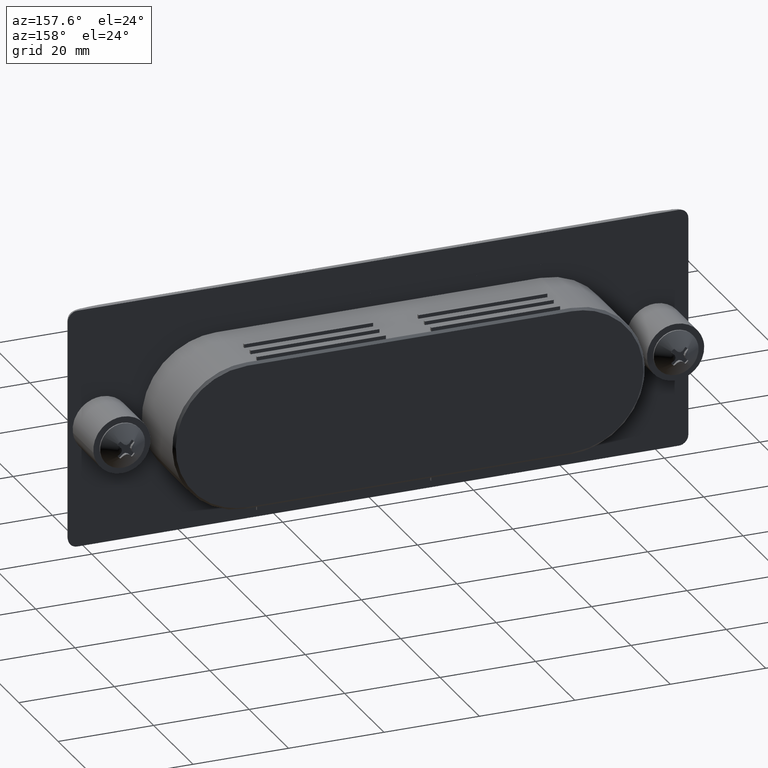
[diagram: clean part render]
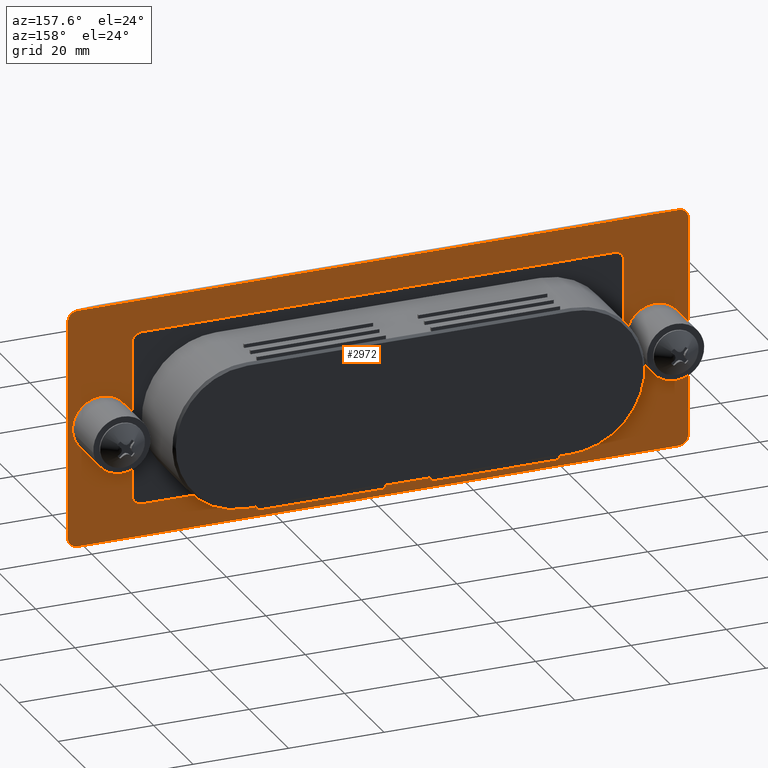
[diagram: same view with one face highlighted and labeled with its STEP entity id]
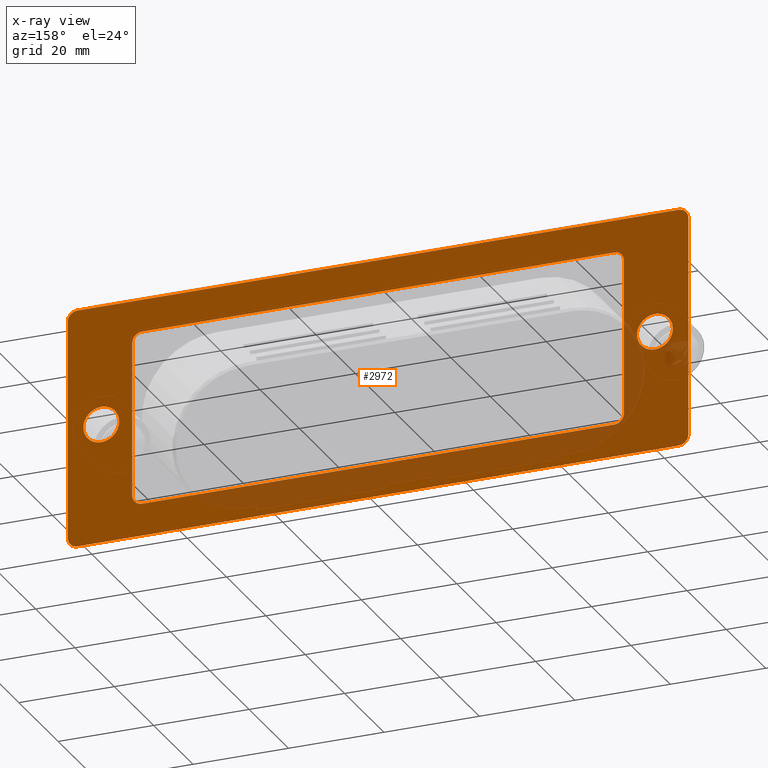
[diagram: x-ray of the same camera — body ghosted, the highlighted face saturated]
A machine part, auxiliary view. The second image highlights one B-rep face of the part: STEP entity #2972.
The next image is the same camera in x-ray: the body ghosted, the highlighted face saturated — about 20% of this face is hidden behind the body in this view.
In plain terms, the highlighted face is a freeform B-spline surface patch.
Its self-contained STEP definition (entity closure, byte-faithful):
#2329=CARTESIAN_POINT('',(-58.0,0.0,3.750000000000000));
#2330=VERTEX_POINT('',#2329);
#2331=CARTESIAN_POINT('',(-54.279001698218302,4.495952E-016,0.465480008311435));
#2332=VERTEX_POINT('',#2331);
#2333=CARTESIAN_POINT('',(-58.0,0.0,3.750000000000000));
#2334=CARTESIAN_POINT('',(-54.689880250354825,0.0,3.750000000000000));
#2335=CARTESIAN_POINT('',(-54.279001698218302,4.495952E-016,0.465480008311435));
#2343=(BOUNDED_CURVE()B_SPLINE_CURVE(2,(#2333,#2334,#2335),.UNSPECIFIED.,.F.,.U.)B_SPLINE_CURVE_WITH_KNOTS((3,3),(0.0,0.228526070982881),.UNSPECIFIED.)CURVE()GEOMETRIC_REPRESENTATION_ITEM()RATIONAL_B_SPLINE_CURVE((1.0,0.732265053948129,0.954005430184640))REPRESENTATION_ITEM(''));
#2344=EDGE_CURVE('',#2330,#2332,#2343,.T.);
#2385=CARTESIAN_POINT('',(-61.749857211484610,4.440892E-016,-0.032724508809673));
#2386=VERTEX_POINT('',#2385);
#2392=CARTESIAN_POINT('',(-61.749857211484610,4.440892E-016,-0.032724508809673));
#2393=CARTESIAN_POINT('',(-61.750000000000007,0.0,-0.016362566268441));
#2394=CARTESIAN_POINT('',(-61.750000000000000,0.0,0.0));
#2395=CARTESIAN_POINT('',(-61.750000000000000,0.0,3.750000000000000));
#2396=CARTESIAN_POINT('',(-58.0,0.0,3.750000000000000));
#2404=(BOUNDED_CURVE()B_SPLINE_CURVE(2,(#2392,#2393,#2394,#2395,#2396),.UNSPECIFIED.,.F.,.U.)B_SPLINE_CURVE_WITH_KNOTS((3,2,3),(0.748460105600117,0.750000000000000,1.0),.UNSPECIFIED.)CURVE()GEOMETRIC_REPRESENTATION_ITEM()RATIONAL_B_SPLINE_CURVE((0.996414027950220,0.998195901490342,1.0,0.707106781186547,1.0))REPRESENTATION_ITEM(''));
#2405=EDGE_CURVE('',#2386,#2330,#2404,.T.);
#2432=CARTESIAN_POINT('',(-58.0,0.0,-3.750000000000000));
#2433=VERTEX_POINT('',#2432);
#2434=CARTESIAN_POINT('',(-54.279001698218295,4.495952E-016,0.465480008311435));
#2435=CARTESIAN_POINT('',(-54.250000000000014,0.0,0.233643478768673));
#2436=CARTESIAN_POINT('',(-54.250000000000007,0.0,0.0));
#2437=CARTESIAN_POINT('',(-54.250000000000014,0.0,-3.750000000000000));
#2438=CARTESIAN_POINT('',(-58.0,0.0,-3.750000000000000));
#2446=(BOUNDED_CURVE()B_SPLINE_CURVE(2,(#2434,#2435,#2436,#2437,#2438),.UNSPECIFIED.,.F.,.U.)B_SPLINE_CURVE_WITH_KNOTS((3,2,3),(0.228526070982882,0.250000000000000,0.500000000000000),.UNSPECIFIED.)CURVE()GEOMETRIC_REPRESENTATION_ITEM()RATIONAL_B_SPLINE_CURVE((0.954005430184641,0.974841727238418,1.0,0.707106781186547,1.0))REPRESENTATION_ITEM(''));
#2447=EDGE_CURVE('',#2332,#2433,#2446,.T.);
#2449=CARTESIAN_POINT('',(-58.0,0.0,-3.750000000000000));
#2450=CARTESIAN_POINT('',(-61.717417038361518,0.0,-3.750000000000000));
#2451=CARTESIAN_POINT('',(-61.749857211484610,4.440892E-016,-0.032724508809673));
#2459=(BOUNDED_CURVE()B_SPLINE_CURVE(2,(#2449,#2450,#2451),.UNSPECIFIED.,.F.,.U.)B_SPLINE_CURVE_WITH_KNOTS((3,3),(0.500000000000000,0.748460105600117),.UNSPECIFIED.)CURVE()GEOMETRIC_REPRESENTATION_ITEM()RATIONAL_B_SPLINE_CURVE((1.0,0.708910879696206,0.996414027950218))REPRESENTATION_ITEM(''));
#2460=EDGE_CURVE('',#2433,#2386,#2459,.T.);
#2515=CARTESIAN_POINT('',(58.0,0.0,3.749999999999996));
#2516=VERTEX_POINT('',#2515);
#2517=CARTESIAN_POINT('',(61.720998301781712,4.640983E-016,0.465480008311430));
#2518=VERTEX_POINT('',#2517);
#2519=CARTESIAN_POINT('',(58.0,0.0,3.749999999999996));
#2520=CARTESIAN_POINT('',(61.310119749645203,0.0,3.749999999999996));
#2521=CARTESIAN_POINT('',(61.720998301781712,4.640983E-016,0.465480008311430));
#2529=(BOUNDED_CURVE()B_SPLINE_CURVE(2,(#2519,#2520,#2521),.UNSPECIFIED.,.F.,.U.)B_SPLINE_CURVE_WITH_KNOTS((3,3),(0.0,0.228526070982881),.UNSPECIFIED.)CURVE()GEOMETRIC_REPRESENTATION_ITEM()RATIONAL_B_SPLINE_CURVE((1.0,0.732265053948129,0.954005430184640))REPRESENTATION_ITEM(''));
#2530=EDGE_CURVE('',#2516,#2518,#2529,.T.);
#2571=CARTESIAN_POINT('',(54.250142788515390,4.718448E-016,-0.032724508809678));
#2572=VERTEX_POINT('',#2571);
#2578=CARTESIAN_POINT('',(54.250142788515390,4.718448E-016,-0.032724508809678));
#2579=CARTESIAN_POINT('',(54.250000000000014,0.0,-0.016362566268446));
#2580=CARTESIAN_POINT('',(54.250000000000007,0.0,-4.440892E-015));
#2581=CARTESIAN_POINT('',(54.250000000000014,0.0,3.749999999999996));
#2582=CARTESIAN_POINT('',(58.0,0.0,3.749999999999996));
#2590=(BOUNDED_CURVE()B_SPLINE_CURVE(2,(#2578,#2579,#2580,#2581,#2582),.UNSPECIFIED.,.F.,.U.)B_SPLINE_CURVE_WITH_KNOTS((3,2,3),(0.748460105600117,0.750000000000000,1.0),.UNSPECIFIED.)CURVE()GEOMETRIC_REPRESENTATION_ITEM()RATIONAL_B_SPLINE_CURVE((0.996414027950220,0.998195901490342,1.0,0.707106781186547,1.0))REPRESENTATION_ITEM(''));
#2591=EDGE_CURVE('',#2572,#2516,#2590,.T.);
#2618=CARTESIAN_POINT('',(58.0,0.0,-3.750000000000004));
#2619=VERTEX_POINT('',#2618);
#2620=CARTESIAN_POINT('',(61.720998301781705,4.640983E-016,0.465480008311430));
#2621=CARTESIAN_POINT('',(61.750000000000007,0.0,0.233643478768669));
#2622=CARTESIAN_POINT('',(61.750000000000000,0.0,-4.440892E-015));
#2623=CARTESIAN_POINT('',(61.750000000000000,0.0,-3.750000000000004));
#2624=CARTESIAN_POINT('',(58.0,0.0,-3.750000000000004));
#2632=(BOUNDED_CURVE()B_SPLINE_CURVE(2,(#2620,#2621,#2622,#2623,#2624),.UNSPECIFIED.,.F.,.U.)B_SPLINE_CURVE_WITH_KNOTS((3,2,3),(0.228526070982882,0.250000000000000,0.500000000000000),.UNSPECIFIED.)CURVE()GEOMETRIC_REPRESENTATION_ITEM()RATIONAL_B_SPLINE_CURVE((0.954005430184641,0.974841727238418,1.0,0.707106781186547,1.0))REPRESENTATION_ITEM(''));
#2633=EDGE_CURVE('',#2518,#2619,#2632,.T.);
#2635=CARTESIAN_POINT('',(58.0,0.0,-3.750000000000004));
#2636=CARTESIAN_POINT('',(54.282582961638496,0.0,-3.750000000000004));
#2637=CARTESIAN_POINT('',(54.250142788515390,4.718448E-016,-0.032724508809678));
#2645=(BOUNDED_CURVE()B_SPLINE_CURVE(2,(#2635,#2636,#2637),.UNSPECIFIED.,.F.,.U.)B_SPLINE_CURVE_WITH_KNOTS((3,3),(0.500000000000000,0.748460105600117),.UNSPECIFIED.)CURVE()GEOMETRIC_REPRESENTATION_ITEM()RATIONAL_B_SPLINE_CURVE((1.0,0.708910879696206,0.996414027950218))REPRESENTATION_ITEM(''));
#2646=EDGE_CURVE('',#2619,#2572,#2645,.T.);
#2707=CARTESIAN_POINT('',(-71.493030090765245,0.0,-27.497499903090301));
#2708=CARTESIAN_POINT('',(-71.493030090765245,0.0,27.497501244194812));
#2709=CARTESIAN_POINT('',(71.493032415330987,0.0,-27.497499903090301));
#2710=CARTESIAN_POINT('',(71.493032415330987,0.0,27.497501244194812));
#2711=B_SPLINE_SURFACE_WITH_KNOTS('',1,1,((#2707,#2709),(#2708,#2710)),.UNSPECIFIED.,.F.,.F.,.U.,(2,2),(2,2),(0.0,54.995001147285109),(0.0,142.986062506096200),.UNSPECIFIED.);
#2712=CARTESIAN_POINT('',(-63.0,0.0,25.0));
#2713=VERTEX_POINT('',#2712);
#2714=CARTESIAN_POINT('',(-64.533334075681097,0.0,24.284089799178901));
#2715=VERTEX_POINT('',#2714);
#2716=CARTESIAN_POINT('',(-63.0,0.0,25.0));
#2717=CARTESIAN_POINT('',(-63.933795462026914,0.0,25.000000000000007));
#2718=CARTESIAN_POINT('',(-64.533334075681068,0.0,24.284089799178879));
#2726=(BOUNDED_CURVE()B_SPLINE_CURVE(2,(#2716,#2717,#2718),.UNSPECIFIED.,.F.,.U.)CURVE()GEOMETRIC_REPRESENTATION_ITEM()QUASI_UNIFORM_CURVE()RATIONAL_B_SPLINE_CURVE((1.0,0.906102891395189,1.0))REPRESENTATION_ITEM(''));
#2727=EDGE_CURVE('',#2713,#2715,#2726,.T.);
#2728=ORIENTED_EDGE('',*,*,#2727,.F.);
#2729=CARTESIAN_POINT('',(63.0,0.0,25.0));
#2730=VERTEX_POINT('',#2729);
#2731=CARTESIAN_POINT('',(63.0,0.0,25.0));
#2732=CARTESIAN_POINT('',(-63.0,0.0,25.0));
#2733=QUASI_UNIFORM_CURVE('',1,(#2731,#2732),.UNSPECIFIED.,.F.,.U.);
#2734=EDGE_CURVE('',#2730,#2713,#2733,.T.);
#2735=ORIENTED_EDGE('',*,*,#2734,.F.);
#2736=CARTESIAN_POINT('',(64.533334075681296,0.0,24.284089799178400));
#2737=VERTEX_POINT('',#2736);
#2738=CARTESIAN_POINT('',(64.533334075681296,0.0,24.284089799178400));
#2739=CARTESIAN_POINT('',(63.933795462027241,0.0,25.000000000000004));
#2740=CARTESIAN_POINT('',(63.0,0.0,25.0));
#2748=(BOUNDED_CURVE()B_SPLINE_CURVE(2,(#2738,#2739,#2740),.UNSPECIFIED.,.F.,.U.)CURVE()GEOMETRIC_REPRESENTATION_ITEM()QUASI_UNIFORM_CURVE()RATIONAL_B_SPLINE_CURVE((1.0,0.906102891395135,1.0))REPRESENTATION_ITEM(''));
#2749=EDGE_CURVE('',#2737,#2730,#2748,.T.);
#2750=ORIENTED_EDGE('',*,*,#2749,.F.);
#2751=CARTESIAN_POINT('',(64.999571890526198,0.0,23.0));
#2752=VERTEX_POINT('',#2751);
#2753=CARTESIAN_POINT('',(64.999571890526198,0.0,23.0));
#2754=CARTESIAN_POINT('',(64.999571890526212,0.0,23.117391981724339));
#2755=CARTESIAN_POINT('',(64.989335340886157,0.0,23.232837629792531));
#2756=CARTESIAN_POINT('',(64.949438624841164,0.0,23.460035802722071));
#2757=CARTESIAN_POINT('',(64.919776405718139,0.0,23.571787937288398));
#2758=CARTESIAN_POINT('',(64.860132140196683,0.0,23.736535404972130));
#2759=CARTESIAN_POINT('',(64.837683124573019,0.0,23.790943084943621));
#2760=CARTESIAN_POINT('',(64.788586925700486,0.0,23.896573001220990));
#2761=CARTESIAN_POINT('',(64.761844048174069,0.0,23.948082947217980));
#2762=CARTESIAN_POINT('',(64.675124559576759,0.0,24.098753330828849));
#2763=CARTESIAN_POINT('',(64.608708597608853,0.0,24.194084938939191));
#2764=CARTESIAN_POINT('',(64.533334075681296,0.0,24.284089799178400));
#2765=B_SPLINE_CURVE_WITH_KNOTS('',3,(#2753,#2754,#2755,#2756,#2757,#2758,#2759,#2760,#2761,#2762,#2763,#2764),.UNSPECIFIED.,.F.,.U.,(4,2,2,2,2,4),(0.0,0.250000000000005,0.500000000000011,0.625000000000013,0.750000000000016,1.0),.UNSPECIFIED.);
#2766=EDGE_CURVE('',#2752,#2737,#2765,.T.);
#2767=ORIENTED_EDGE('',*,*,#2766,.F.);
#2768=CARTESIAN_POINT('',(64.999571890526198,0.0,-23.0));
#2769=VERTEX_POINT('',#2768);
#2770=CARTESIAN_POINT('',(64.999571890526198,0.0,-23.0));
#2771=CARTESIAN_POINT('',(64.999571890526198,0.0,23.0));
#2772=QUASI_UNIFORM_CURVE('',1,(#2770,#2771),.UNSPECIFIED.,.F.,.U.);
#2773=EDGE_CURVE('',#2769,#2752,#2772,.T.);
#2774=ORIENTED_EDGE('',*,*,#2773,.F.);
#2775=CARTESIAN_POINT('',(64.533334075681296,1.355253E-017,-24.284089799178400));
#2776=VERTEX_POINT('',#2775);
#2777=CARTESIAN_POINT('',(64.533334075681296,1.355253E-017,-24.284089799178400));
#2778=CARTESIAN_POINT('',(64.608709866245761,1.355253E-017,-24.194083424057400));
#2779=CARTESIAN_POINT('',(64.674938814090893,-7.523164E-034,-24.098977066176928));
#2780=CARTESIAN_POINT('',(64.790085953868370,0.0,-23.899112434512631));
#2781=CARTESIAN_POINT('',(64.839001651547278,0.0,-23.794352770013990));
#2782=CARTESIAN_POINT('',(64.898904656847577,0.0,-23.629702536492630));
#2783=CARTESIAN_POINT('',(64.916577187236669,0.0,-23.573560433712171));
#2784=CARTESIAN_POINT('',(64.946664921715396,0.0,-23.461027059860019));
#2785=CARTESIAN_POINT('',(64.959191227488887,0.0,-23.404353735862411));
#2786=CARTESIAN_POINT('',(64.989333669579253,0.0,-23.233132622784829));
#2787=CARTESIAN_POINT('',(64.999571890526198,0.0,-23.117393151221350));
#2788=CARTESIAN_POINT('',(64.999571890526198,0.0,-23.0));
#2789=B_SPLINE_CURVE_WITH_KNOTS('',3,(#2777,#2778,#2779,#2780,#2781,#2782,#2783,#2784,#2785,#2786,#2787,#2788),.UNSPECIFIED.,.F.,.U.,(4,2,2,2,2,4),(0.0,0.250000000000000,0.500000000000000,0.625000000000000,0.750000000000000,1.0),.UNSPECIFIED.);
#2790=EDGE_CURVE('',#2776,#2769,#2789,.T.);
#2791=ORIENTED_EDGE('',*,*,#2790,.F.);
#2792=CARTESIAN_POINT('',(63.0,0.0,-25.0));
#2793=VERTEX_POINT('',#2792);
#2794=CARTESIAN_POINT('',(63.0,0.0,-25.0));
#2795=CARTESIAN_POINT('',(63.933795462027234,0.0,-25.0));
#2796=CARTESIAN_POINT('',(64.533334075681296,1.355253E-017,-24.284089799178400));
#2804=(BOUNDED_CURVE()B_SPLINE_CURVE(2,(#2794,#2795,#2796),.UNSPECIFIED.,.F.,.U.)CURVE()GEOMETRIC_REPRESENTATION_ITEM()QUASI_UNIFORM_CURVE()RATIONAL_B_SPLINE_CURVE((1.0,0.906102891395135,1.0))REPRESENTATION_ITEM(''));
#2805=EDGE_CURVE('',#2793,#2776,#2804,.T.);
#2806=ORIENTED_EDGE('',*,*,#2805,.F.);
#2807=CARTESIAN_POINT('',(-63.0,0.0,-25.0));
#2808=VERTEX_POINT('',#2807);
#2809=CARTESIAN_POINT('',(-63.0,0.0,-25.0));
#2810=CARTESIAN_POINT('',(63.0,0.0,-25.0));
#2811=QUASI_UNIFORM_CURVE('',1,(#2809,#2810),.UNSPECIFIED.,.F.,.U.);
#2812=EDGE_CURVE('',#2808,#2793,#2811,.T.);
#2813=ORIENTED_EDGE('',*,*,#2812,.F.);
#2814=CARTESIAN_POINT('',(-64.533334075681097,0.0,-24.284089799178901));
#2815=VERTEX_POINT('',#2814);
#2816=CARTESIAN_POINT('',(-64.533334075681068,0.0,-24.284089799178879));
#2817=CARTESIAN_POINT('',(-63.933795462026922,0.0,-25.000000000000004));
#2818=CARTESIAN_POINT('',(-63.0,0.0,-25.0));
#2826=(BOUNDED_CURVE()B_SPLINE_CURVE(2,(#2816,#2817,#2818),.UNSPECIFIED.,.F.,.U.)CURVE()GEOMETRIC_REPRESENTATION_ITEM()QUASI_UNIFORM_CURVE()RATIONAL_B_SPLINE_CURVE((1.0,0.906102891395188,1.0))REPRESENTATION_ITEM(''));
#2827=EDGE_CURVE('',#2815,#2808,#2826,.T.);
#2828=ORIENTED_EDGE('',*,*,#2827,.F.);
#2829=CARTESIAN_POINT('',(-64.999571890526298,0.0,-23.0));
#2830=VERTEX_POINT('',#2829);
#2831=CARTESIAN_POINT('',(-64.999571890526298,0.0,-23.0));
#2832=CARTESIAN_POINT('',(-64.999571890526340,0.0,-23.117391981724388));
#2833=CARTESIAN_POINT('',(-64.989335340886171,0.0,-23.232837629792598));
#2834=CARTESIAN_POINT('',(-64.949438624841150,0.0,-23.460035802722238));
#2835=CARTESIAN_POINT('',(-64.919776405718054,0.0,-23.571787937288612));
#2836=CARTESIAN_POINT('',(-64.860132140196598,0.0,-23.736535404972411));
#2837=CARTESIAN_POINT('',(-64.837683124572891,0.0,-23.790943084943880));
#2838=CARTESIAN_POINT('',(-64.788586925700343,0.0,-23.896573001221292));
#2839=CARTESIAN_POINT('',(-64.761844048173870,0.0,-23.948082947218310));
#2840=CARTESIAN_POINT('',(-64.675124559576503,0.0,-24.098753330829201));
#2841=CARTESIAN_POINT('',(-64.608708597608683,0.0,-24.194084938939660));
#2842=CARTESIAN_POINT('',(-64.533334075681097,0.0,-24.284089799178901));
#2843=B_SPLINE_CURVE_WITH_KNOTS('',3,(#2831,#2832,#2833,#2834,#2835,#2836,#2837,#2838,#2839,#2840,#2841,#2842),.UNSPECIFIED.,.F.,.U.,(4,2,2,2,2,4),(0.0,0.249999999999997,0.499999999999993,0.624999999999995,0.749999999999996,1.0),.UNSPECIFIED.);
#2844=EDGE_CURVE('',#2830,#2815,#2843,.T.);
#2845=ORIENTED_EDGE('',*,*,#2844,.F.);
#2846=CARTESIAN_POINT('',(-64.999571890526298,0.0,23.0));
#2847=VERTEX_POINT('',#2846);
#2848=CARTESIAN_POINT('',(-64.999571890526298,0.0,23.0));
#2849=CARTESIAN_POINT('',(-64.999571890526298,0.0,-23.0));
#2850=QUASI_UNIFORM_CURVE('',1,(#2848,#2849),.UNSPECIFIED.,.F.,.U.);
#2851=EDGE_CURVE('',#2847,#2830,#2850,.T.);
#2852=ORIENTED_EDGE('',*,*,#2851,.F.);
#2853=CARTESIAN_POINT('',(-64.533334075681097,0.0,24.284089799178901));
#2854=CARTESIAN_POINT('',(-64.608709866245619,0.0,24.194083424057869));
#2855=CARTESIAN_POINT('',(-64.674938814090652,0.0,24.098977066177309));
#2856=CARTESIAN_POINT('',(-64.790085953868228,0.0,23.899112434512940));
#2857=CARTESIAN_POINT('',(-64.839001651547150,0.0,23.794352770014250));
#2858=CARTESIAN_POINT('',(-64.898904656847520,0.0,23.629702536492822));
#2859=CARTESIAN_POINT('',(-64.916577187236598,0.0,23.573560433712380));
#2860=CARTESIAN_POINT('',(-64.946664921715325,0.0,23.461027059860179));
#2861=CARTESIAN_POINT('',(-64.959191227488859,0.0,23.404353735862550));
#2862=CARTESIAN_POINT('',(-64.989333669579267,0.0,23.233132622784911));
#2863=CARTESIAN_POINT('',(-64.999571890526312,0.0,23.117393151221400));
#2864=CARTESIAN_POINT('',(-64.999571890526298,0.0,23.0));
#2865=B_SPLINE_CURVE_WITH_KNOTS('',3,(#2853,#2854,#2855,#2856,#2857,#2858,#2859,#2860,#2861,#2862,#2863,#2864),.UNSPECIFIED.,.F.,.U.,(4,2,2,2,2,4),(0.0,0.250000000000000,0.499999999999999,0.625000000000003,0.750000000000006,1.0),.UNSPECIFIED.);
#2866=EDGE_CURVE('',#2715,#2847,#2865,.T.);
#2867=ORIENTED_EDGE('',*,*,#2866,.F.);
#2868=EDGE_LOOP('',(#2728,#2735,#2750,#2767,#2774,#2791,#2806,#2813,#2828,#2845,#2852,#2867));
#2869=FACE_OUTER_BOUND('',#2868,.T.);
#2870=CARTESIAN_POINT('',(49.500000000000000,0.0,18.250000000000000));
#2871=VERTEX_POINT('',#2870);
#2872=CARTESIAN_POINT('',(-49.500000000000000,0.0,18.250000000000000));
#2873=VERTEX_POINT('',#2872);
#2874=CARTESIAN_POINT('',(49.500000000000000,0.0,18.250000000000000));
#2875=CARTESIAN_POINT('',(-49.500000000000000,0.0,18.250000000000000));
#2876=QUASI_UNIFORM_CURVE('',1,(#2874,#2875),.UNSPECIFIED.,.F.,.U.);
#2877=EDGE_CURVE('',#2871,#2873,#2876,.T.);
#2878=ORIENTED_EDGE('',*,*,#2877,.T.);
#2879=CARTESIAN_POINT('',(-51.500000000000000,0.0,16.250000000000000));
#2880=VERTEX_POINT('',#2879);
#2881=CARTESIAN_POINT('',(-49.500000000000000,0.0,18.250000000000000));
#2882=CARTESIAN_POINT('',(-51.500000000000000,0.0,18.250000000000011));
#2883=CARTESIAN_POINT('',(-51.500000000000007,0.0,16.250000000000000));
#2891=(BOUNDED_CURVE()B_SPLINE_CURVE(2,(#2881,#2882,#2883),.UNSPECIFIED.,.F.,.U.)CURVE()GEOMETRIC_REPRESENTATION_ITEM()QUASI_UNIFORM_CURVE()RATIONAL_B_SPLINE_CURVE((1.0,0.707106781186548,1.0))REPRESENTATION_ITEM(''));
#2892=EDGE_CURVE('',#2873,#2880,#2891,.T.);
#2893=ORIENTED_EDGE('',*,*,#2892,.T.);
#2894=CARTESIAN_POINT('',(-51.500000000000000,0.0,-16.250000000000000));
#2895=VERTEX_POINT('',#2894);
#2896=CARTESIAN_POINT('',(-51.500000000000000,0.0,16.250000000000000));
#2897=CARTESIAN_POINT('',(-51.500000000000000,0.0,-16.250000000000000));
#2898=QUASI_UNIFORM_CURVE('',1,(#2896,#2897),.UNSPECIFIED.,.F.,.U.);
#2899=EDGE_CURVE('',#2880,#2895,#2898,.T.);
#2900=ORIENTED_EDGE('',*,*,#2899,.T.);
#2901=CARTESIAN_POINT('',(-49.500000000000000,0.0,-18.250000000000000));
#2902=VERTEX_POINT('',#2901);
#2903=CARTESIAN_POINT('',(-51.500000000000007,0.0,-16.250000000000000));
#2904=CARTESIAN_POINT('',(-51.500000000000000,0.0,-18.250000000000011));
#2905=CARTESIAN_POINT('',(-49.500000000000000,0.0,-18.250000000000000));
#2913=(BOUNDED_CURVE()B_SPLINE_CURVE(2,(#2903,#2904,#2905),.UNSPECIFIED.,.F.,.U.)CURVE()GEOMETRIC_REPRESENTATION_ITEM()QUASI_UNIFORM_CURVE()RATIONAL_B_SPLINE_CURVE((1.0,0.707106781186548,1.0))REPRESENTATION_ITEM(''));
#2914=EDGE_CURVE('',#2895,#2902,#2913,.T.);
#2915=ORIENTED_EDGE('',*,*,#2914,.T.);
#2916=CARTESIAN_POINT('',(49.500000000000000,0.0,-18.250000000000000));
#2917=VERTEX_POINT('',#2916);
#2918=CARTESIAN_POINT('',(-49.500000000000000,0.0,-18.250000000000000));
#2919=CARTESIAN_POINT('',(49.500000000000000,0.0,-18.250000000000000));
#2920=QUASI_UNIFORM_CURVE('',1,(#2918,#2919),.UNSPECIFIED.,.F.,.U.);
#2921=EDGE_CURVE('',#2902,#2917,#2920,.T.);
#2922=ORIENTED_EDGE('',*,*,#2921,.T.);
#2923=CARTESIAN_POINT('',(51.500000000000000,0.0,-16.250000000000000));
#2924=VERTEX_POINT('',#2923);
#2925=CARTESIAN_POINT('',(49.500000000000000,0.0,-18.250000000000000));
#2926=CARTESIAN_POINT('',(51.500000000000000,0.0,-18.250000000000011));
#2927=CARTESIAN_POINT('',(51.500000000000007,0.0,-16.250000000000000));
#2935=(BOUNDED_CURVE()B_SPLINE_CURVE(2,(#2925,#2926,#2927),.UNSPECIFIED.,.F.,.U.)CURVE()GEOMETRIC_REPRESENTATION_ITEM()QUASI_UNIFORM_CURVE()RATIONAL_B_SPLINE_CURVE((1.0,0.707106781186548,1.0))REPRESENTATION_ITEM(''));
#2936=EDGE_CURVE('',#2917,#2924,#2935,.T.);
#2937=ORIENTED_EDGE('',*,*,#2936,.T.);
#2938=CARTESIAN_POINT('',(51.500000000000000,0.0,16.250000000000000));
#2939=VERTEX_POINT('',#2938);
#2940=CARTESIAN_POINT('',(51.500000000000000,0.0,-16.250000000000000));
#2941=CARTESIAN_POINT('',(51.500000000000000,0.0,16.250000000000000));
#2942=QUASI_UNIFORM_CURVE('',1,(#2940,#2941),.UNSPECIFIED.,.F.,.U.);
#2943=EDGE_CURVE('',#2924,#2939,#2942,.T.);
#2944=ORIENTED_EDGE('',*,*,#2943,.T.);
#2945=CARTESIAN_POINT('',(51.500000000000007,0.0,16.250000000000000));
#2946=CARTESIAN_POINT('',(51.500000000000000,0.0,18.250000000000011));
#2947=CARTESIAN_POINT('',(49.500000000000000,0.0,18.250000000000000));
#2955=(BOUNDED_CURVE()B_SPLINE_CURVE(2,(#2945,#2946,#2947),.UNSPECIFIED.,.F.,.U.)CURVE()GEOMETRIC_REPRESENTATION_ITEM()QUASI_UNIFORM_CURVE()RATIONAL_B_SPLINE_CURVE((1.0,0.707106781186548,1.0))REPRESENTATION_ITEM(''));
#2956=EDGE_CURVE('',#2939,#2871,#2955,.T.);
#2957=ORIENTED_EDGE('',*,*,#2956,.T.);
#2958=EDGE_LOOP('',(#2878,#2893,#2900,#2915,#2922,#2937,#2944,#2957));
#2959=FACE_BOUND('',#2958,.T.);
#2960=ORIENTED_EDGE('',*,*,#2646,.F.);
#2961=ORIENTED_EDGE('',*,*,#2633,.F.);
#2962=ORIENTED_EDGE('',*,*,#2530,.F.);
#2963=ORIENTED_EDGE('',*,*,#2591,.F.);
#2964=EDGE_LOOP('',(#2960,#2961,#2962,#2963));
#2965=FACE_BOUND('',#2964,.T.);
#2966=ORIENTED_EDGE('',*,*,#2460,.F.);
#2967=ORIENTED_EDGE('',*,*,#2447,.F.);
#2968=ORIENTED_EDGE('',*,*,#2344,.F.);
#2969=ORIENTED_EDGE('',*,*,#2405,.F.);
#2970=EDGE_LOOP('',(#2966,#2967,#2968,#2969));
#2971=FACE_BOUND('',#2970,.T.);
#2972=ADVANCED_FACE('',(#2869,#2959,#2965,#2971),#2711,.T.);